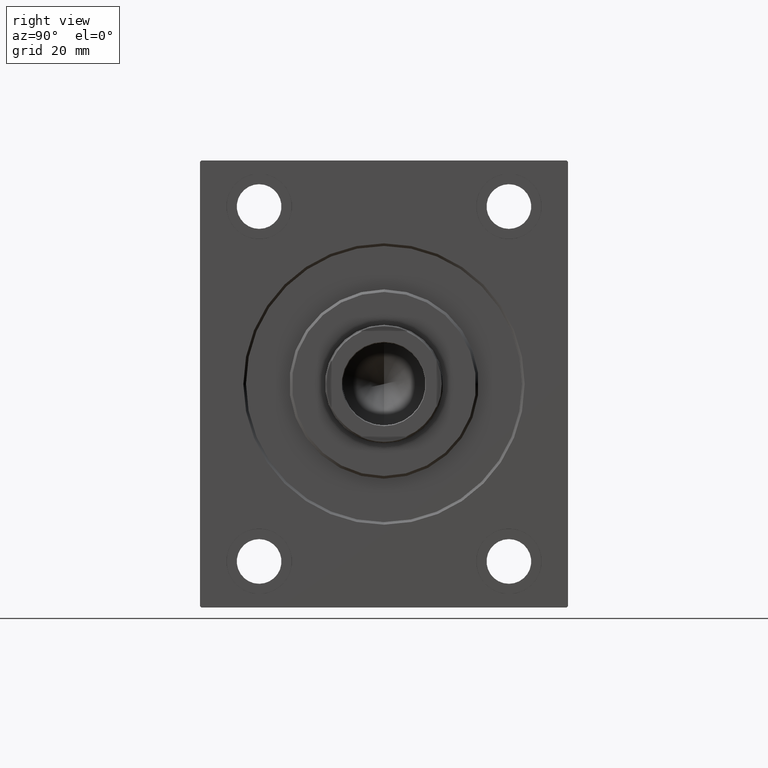
[diagram: clean part render]
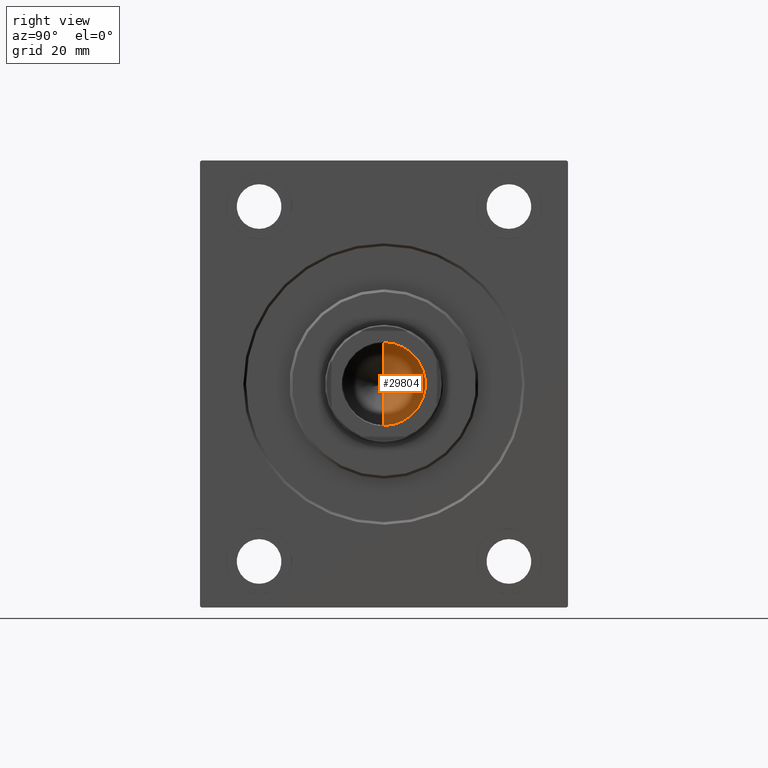
[diagram: same view with one face highlighted and labeled with its STEP entity id]
A machine part, right view. The second image highlights one B-rep face of the part: STEP entity #29804.
In plain terms, the highlighted conical surface has half-angle 59 deg.
Its self-contained STEP definition (entity closure, byte-faithful):
#902 = VECTOR ( 'NONE', #29789, 1000.000000000000000 ) ;
#1957 = CARTESIAN_POINT ( 'NONE',  ( -15.74999999999999289, 1.928818708657080556E-15, 106.0000000000000142 ) ) ;
#4057 = VERTEX_POINT ( 'NONE', #1957 ) ;
#4580 = CARTESIAN_POINT ( 'NONE',  ( 0.000000000000000000, 0.000000000000000000, 106.0000000000000142 ) ) ;
#5652 = DIRECTION ( 'NONE',  ( 1.000000000000000000, 0.000000000000000000, 0.000000000000000000 ) ) ;
#9351 = CARTESIAN_POINT ( 'NONE',  ( -15.74999999999999289, 1.928818708657080556E-15, 106.0000000000000142 ) ) ;
#9640 = VERTEX_POINT ( 'NONE', #37178 ) ;
#9645 = EDGE_CURVE ( 'NONE', #19799, #4057, #29571, .T. ) ;
#15121 = AXIS2_PLACEMENT_3D ( 'NONE', #44027, #43372, #5652 ) ;
#16823 = EDGE_LOOP ( 'NONE', ( #41458, #19846, #40430 ) ) ;
#18744 = VECTOR ( 'NONE', #24854, 1000.000000000000000 ) ;
#19799 = VERTEX_POINT ( 'NONE', #40767 ) ;
#19846 = ORIENTED_EDGE ( 'NONE', *, *, #36851, .T. ) ;
#21642 = FACE_OUTER_BOUND ( 'NONE', #16823, .T. ) ;
#24854 = DIRECTION ( 'NONE',  ( 0.8571673007021120005, 0.000000000000000000, 0.5150380749100547106 ) ) ;
#25724 = CONICAL_SURFACE ( 'NONE', #26455, 15.74999999999999289, 1.029744258676653867 ) ;
#26455 = AXIS2_PLACEMENT_3D ( 'NONE', #4580, #33291, #43595 ) ;
#28438 = LINE ( 'NONE', #38550, #18744 ) ;
#29571 = LINE ( 'NONE', #9351, #902 ) ;
#29789 = DIRECTION ( 'NONE',  ( -0.8571673007021120005, 1.049727191138618326E-16, 0.5150380749100547106 ) ) ;
#29804 = ADVANCED_FACE ( 'NONE', ( #21642 ), #25724, .F. ) ;
#33291 = DIRECTION ( 'NONE',  ( -0.000000000000000000, -0.000000000000000000, 1.000000000000000000 ) ) ;
#35197 = CIRCLE ( 'NONE', #15121, 15.74999999999999289 ) ;
#35839 = EDGE_CURVE ( 'NONE', #9640, #4057, #35197, .T. ) ;
#36851 = EDGE_CURVE ( 'NONE', #19799, #9640, #28438, .T. ) ;
#37178 = CARTESIAN_POINT ( 'NONE',  ( 15.74999999999999289, 0.000000000000000000, 106.0000000000000142 ) ) ;
#38550 = CARTESIAN_POINT ( 'NONE',  ( 15.74999999999999289, 0.000000000000000000, 106.0000000000000142 ) ) ;
#40430 = ORIENTED_EDGE ( 'NONE', *, *, #35839, .T. ) ;
#40767 = CARTESIAN_POINT ( 'NONE',  ( -1.041392428426254229E-14, 0.000000000000000000, 96.53644525031593560 ) ) ;
#41458 = ORIENTED_EDGE ( 'NONE', *, *, #9645, .F. ) ;
#43372 = DIRECTION ( 'NONE',  ( -0.000000000000000000, -0.000000000000000000, 1.000000000000000000 ) ) ;
#43595 = DIRECTION ( 'NONE',  ( 1.000000000000000000, 0.000000000000000000, 0.000000000000000000 ) ) ;
#44027 = CARTESIAN_POINT ( 'NONE',  ( 0.000000000000000000, 0.000000000000000000, 106.0000000000000142 ) ) ;